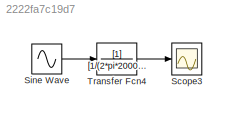
MODEL slx_2222fa7c19d7
KIND model
CONFIG AbsTol = auto
CONFIG EnableMultiTasking = off
CONFIG FixedStep = auto
CONFIG MaxStep = auto
CONFIG MinStep = auto
CONFIG RelTol = 1e-3
CONFIG SampleTimeConstraint = Unconstrained
CONFIG Solver = VariableStepAuto
CONFIG SolverName = VariableStepAuto
CONFIG StartTime = 0.0
CONFIG StopTime = 0.01
BLOCK [Scope] Scope3
  Floating = off
  NumInputPorts = 1
  Ports = [1]
  ScopeSpecificationString = Simulink.scopes.TimeScopeBlockCfg('CurrentConfiguration', extmgr.ConfigurationSet(extmgr.Configuration('Core','General UI',true),extmgr.Configuration('Core','Source UI',true),extmgr.Configuration('Sources','WiredSimulink',true,'DataLoggingVariableName','ScopeData1'),extmgr.Configuration('Visuals','Time Domain',true,'SerializedDisplays',{struct('MinYLimReal','-2.22736','MaxYLimReal','2.25047','YLab...<+1469ch>
BLOCK [Sin] Sine Wave
  Frequency = 2*pi*1500
  Ports = [0, 1]
  SampleTime = 0
BLOCK [TransferFcn] Transfer Fcn4
  Denominator = [1/(2*pi*2000) 1]
LINE Sine Wave:1 -> Transfer Fcn4:1
LINE Transfer Fcn4:1 -> Scope3:1
